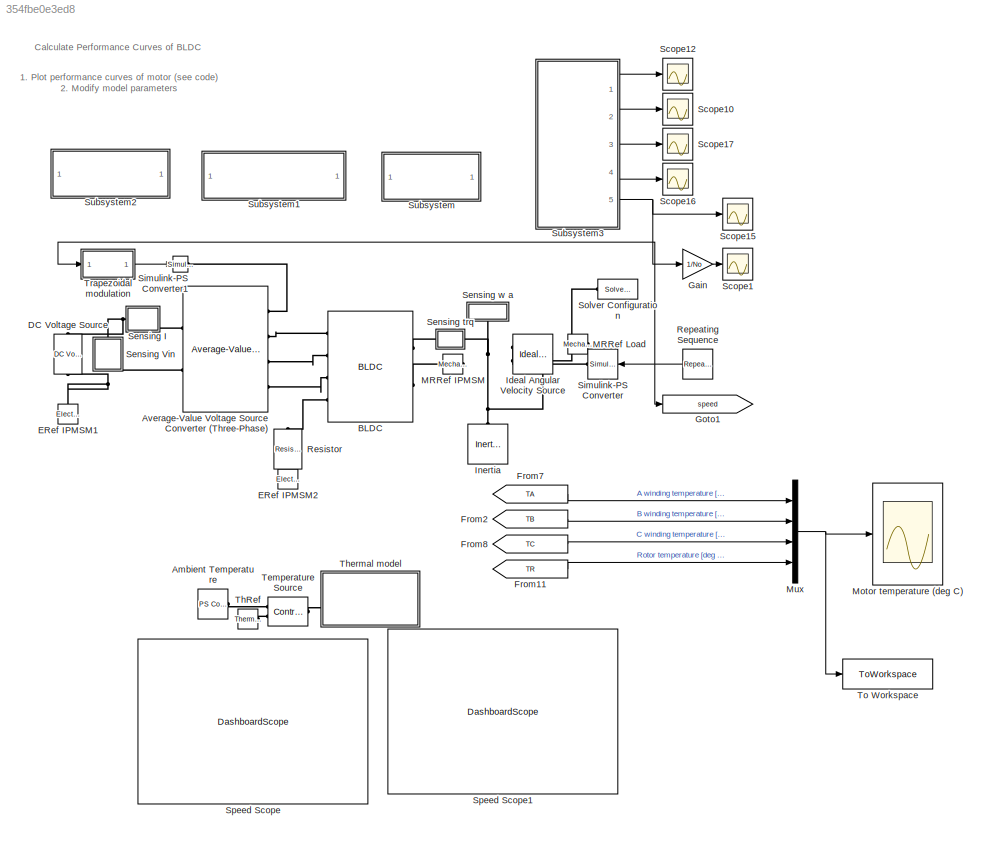
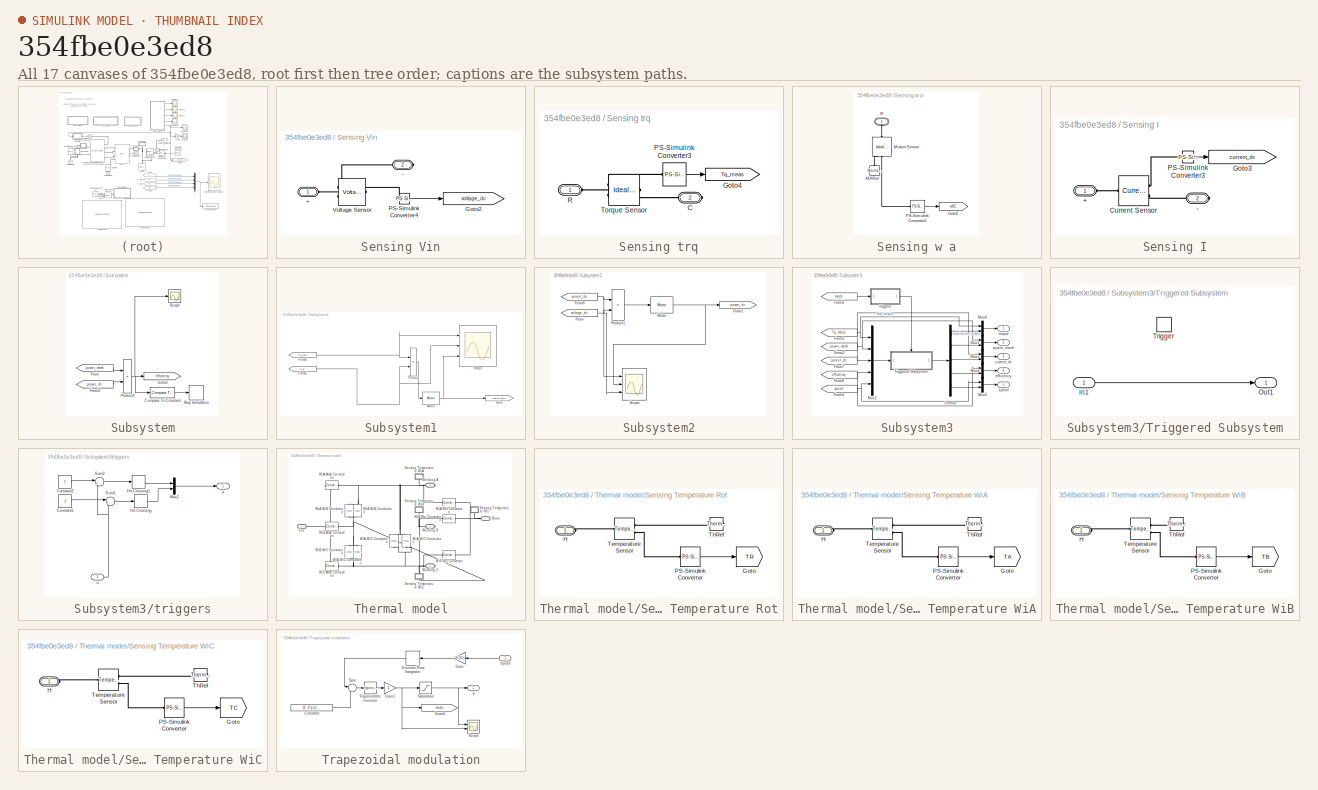
[diagram: thumbnail index - all 17 canvases of the model, root first then tree order]
MODEL slx_354fbe0e3ed8
KIND model
CONFIG AbsTol = auto
CONFIG EnableMultiTasking = off
CONFIG FixedStep = Ts
CONFIG MaxStep = auto
CONFIG MinStep = auto
CONFIG PreLoadFcn = ee_bldc_ideal_input_performance_curves_data;
CONFIG RelTol = 1e-3
CONFIG SampleTimeConstraint = Unconstrained
CONFIG SolverName = ode14x
CONFIG StartTime = 0.0
CONFIG StopFcn = ee_addSimlogTimeStamp(bdroot)
CONFIG StopTime = 20
WORKSPACE source: mxarray member
WORKSPACE Ts = 5e-06
BLOCK [Reference] Ambient Temperature  REF=fl_lib/Physical Signals/Sources/PS Constant
  Commented = on
  Ports = [0, 0, 0, 0, 0, 0, 1]
  SourceBlock = fl_lib/Physical Signals/Sources/PS Constant
  SourceProductBaseCode = SS
  SourceType = PS Constant
BLOCK [Reference] Average-Value Voltage Source Converter (Three-Phase)  REF=ee_lib/Semiconductors &
Converters/Converters/Average-Value
Voltage Source
Converter
(Three-Phase)
  Ports = [0, 0, 0, 0, 0, 4, 2]
  SourceBlock = ee_lib/Semiconductors &\nConverters/Converters/Average-Value\nVoltage Source\nConverter\n(Three-Phase)
  SourceProductBaseCode = PS
  SourceType = Average-Value\nVoltage Source\nConverter\n(Three-Phase)
BLOCK [Reference] BLDC  REF=ee_lib/Electromechanical/Permanent Magnet/BLDC
  Ports = [0, 0, 0, 0, 0, 4, 2]
  SourceBlock = ee_lib/Electromechanical/Permanent Magnet/BLDC
  SourceProductBaseCode = PS
  SourceType = BLDC
BLOCK [Reference] DC Voltage Source  REF=ee_lib/Additional
Components/SPICE Sources/DC Voltage Source
  NameLocation = left
  Ports = [0, 0, 0, 0, 0, 1, 1]
  SourceBlock = ee_lib/Additional\nComponents/SPICE Sources/DC Voltage Source
  SourceProductBaseCode = PS
  SourceType = DC Voltage Source
BLOCK [Reference] ERef IPMSM1  REF=fl_lib/Electrical/Electrical Elements/Electrical Reference
  NameLocation = right
  Ports = [0, 0, 0, 0, 0, 1]
  SourceBlock = fl_lib/Electrical/Electrical Elements/Electrical Reference
  SourceProductBaseCode = SS
  SourceType = Electrical Reference
BLOCK [Reference] ERef IPMSM2  REF=fl_lib/Electrical/Electrical Elements/Electrical Reference
  NameLocation = right
  Ports = [0, 0, 0, 0, 0, 1]
  SourceBlock = fl_lib/Electrical/Electrical Elements/Electrical Reference
  SourceProductBaseCode = SS
  SourceType = Electrical Reference
BLOCK [From] From11
  Commented = on
  GotoTag = TR
  TagVisibility = global
BLOCK [From] From2
  Commented = on
  GotoTag = TB
  TagVisibility = global
BLOCK [From] From7
  Commented = on
  GotoTag = TA
  TagVisibility = global
BLOCK [From] From8
  Commented = on
  GotoTag = TC
  TagVisibility = global
BLOCK [Gain] Gain
  Gain = 1/No
BLOCK [Goto] Goto1
  GotoTag = speed
  TagVisibility = global
BLOCK [Reference] Ideal Angular Velocity Source  REF=fl_lib/Mechanical/Mechanical Sources/Ideal Angular
Velocity Source
  NameLocation = top
  Ports = [0, 0, 0, 0, 0, 1, 2]
  SourceBlock = fl_lib/Mechanical/Mechanical Sources/Ideal Angular\nVelocity Source
  SourceProductBaseCode = SS
  SourceType = Ideal Angular\nVelocity Source
BLOCK [Reference] Inertia  REF=fl_lib/Mechanical/Rotational Elements/Inertia
  NameLocation = left
  Ports = [0, 0, 0, 0, 0, 1]
  SourceBlock = fl_lib/Mechanical/Rotational Elements/Inertia
  SourceProductBaseCode = SS
  SourceType = Inertia
BLOCK [Reference] MRRef IPMSM  REF=fl_lib/Mechanical/Rotational Elements/Mechanical
Rotational Reference
  NameLocation = top
  Ports = [0, 0, 0, 0, 0, 1]
  SourceBlock = fl_lib/Mechanical/Rotational Elements/Mechanical\nRotational Reference
  SourceProductBaseCode = SS
  SourceType = Mechanical\nRotational Reference
BLOCK [Reference] MRRef Load  REF=fl_lib/Mechanical/Rotational Elements/Mechanical
Rotational Reference
  NameLocation = top
  Ports = [0, 0, 0, 0, 0, 1]
  SourceBlock = fl_lib/Mechanical/Rotational Elements/Mechanical\nRotational Reference
  SourceProductBaseCode = SS
  SourceType = Mechanical\nRotational Reference
BLOCK [Scope] Motor temperature (deg C)
  Commented = on
  Floating = off
  NumInputPorts = 1
  Ports = [1]
  ScopeSpecificationString = Simulink.scopes.TimeScopeBlockCfg('CurrentConfiguration', extmgr.ConfigurationSet(extmgr.Configuration('Core','General UI',true),extmgr.Configuration('Core','Source UI',true),extmgr.Configuration('Sources','WiredSimulink',true,'DataLoggingVariableName','ScopeData1','DataLoggingSaveFormat','StructureWithTime','DataLoggingMaxPoints','500000','DataLoggingDecimation','1','DataLoggingDecimateData',true...<+1862ch>
BLOCK [Mux] Mux
  Commented = on
  DisplayOption = bar
  Ports = [4, 1]
BLOCK [Reference] Repeating Sequence  REF=simulink/Sources/Repeating
Sequence
  Ports = [0, 1]
  SourceBlock = simulink/Sources/Repeating\nSequence
  SourceProductBaseCode = SL
  SourceType = Repeating table
BLOCK [Reference] Resistor  REF=fl_lib/Electrical/Electrical Elements/Resistor
  NameLocation = left
  Ports = [0, 0, 0, 0, 0, 1, 1]
  SourceBlock = fl_lib/Electrical/Electrical Elements/Resistor
  SourceProductBaseCode = SS
  SourceType = Resistor
BLOCK [Scope] Scope1
  Floating = off
  NumInputPorts = 1
  Ports = [1]
  ScopeSpecificationString = Simulink.scopes.TimeScopeBlockCfg('CurrentConfiguration', extmgr.ConfigurationSet(extmgr.Configuration('Core','General UI',true),extmgr.Configuration('Core','Source UI',true),extmgr.Configuration('Sources','WiredSimulink',true,'DataLoggingVariableName','ScopeData1','DataLogging',true,'DataLoggingSaveFormat','StructureWithTime'),extmgr.Configuration('Visuals','Time Domain',true,'SerializedDisplays'...<+1498ch>
BLOCK [Scope] Scope10
  Floating = off
  NumInputPorts = 1
  Ports = [1]
  ScopeSpecificationString = Simulink.scopes.TimeScopeBlockCfg('CurrentConfiguration', extmgr.ConfigurationSet(extmgr.Configuration('Core','General UI',true),extmgr.Configuration('Core','Source UI',true),extmgr.Configuration('Sources','WiredSimulink',true,'DataLoggingVariableName','powers','DataLogging',true,'DataLoggingSaveFormat','StructureWithTime'),extmgr.Configuration('Visuals','Time Domain',true,'SerializedDisplays',{st...<+1580ch>
BLOCK [Scope] Scope12
  Floating = off
  NumInputPorts = 1
  Ports = [1]
  ScopeSpecificationString = Simulink.scopes.TimeScopeBlockCfg('CurrentConfiguration', extmgr.ConfigurationSet(extmgr.Configuration('Core','General UI',true),extmgr.Configuration('Core','Source UI',true),extmgr.Configuration('Sources','WiredSimulink',true,'DataLoggingVariableName','torques','DataLogging',true,'DataLoggingSaveFormat','StructureWithTime'),extmgr.Configuration('Visuals','Time Domain',true,'SerializedDisplays',{s...<+1523ch>
BLOCK [Scope] Scope15
  Floating = off
  NumInputPorts = 1
  Ports = [1]
  ScopeSpecificationString = Simulink.scopes.TimeScopeBlockCfg('CurrentConfiguration', extmgr.ConfigurationSet(extmgr.Configuration('Core','General UI',true),extmgr.Configuration('Core','Source UI',true),extmgr.Configuration('Sources','WiredSimulink',true,'DataLoggingVariableName','speeds','DataLogging',true,'DataLoggingSaveFormat','StructureWithTime'),extmgr.Configuration('Visuals','Time Domain',true,'SerializedDisplays',{st...<+1541ch>
BLOCK [Scope] Scope16
  Floating = off
  NumInputPorts = 1
  Ports = [1]
  ScopeSpecificationString = Simulink.scopes.TimeScopeBlockCfg('CurrentConfiguration', extmgr.ConfigurationSet(extmgr.Configuration('Core','General UI',true),extmgr.Configuration('Core','Source UI',true),extmgr.Configuration('Sources','WiredSimulink',true,'DataLoggingVariableName','efficiencys','DataLogging',true,'DataLoggingSaveFormat','StructureWithTime'),extmgr.Configuration('Visuals','Time Domain',true,'SerializedDisplays...<+1571ch>
BLOCK [Scope] Scope17
  Floating = off
  NumInputPorts = 1
  Ports = [1]
  ScopeSpecificationString = Simulink.scopes.TimeScopeBlockCfg('CurrentConfiguration', extmgr.ConfigurationSet(extmgr.Configuration('Core','General UI',true),extmgr.Configuration('Core','Source UI',true),extmgr.Configuration('Sources','WiredSimulink',true,'DataLoggingVariableName','currents','DataLogging',true,'DataLoggingSaveFormat','StructureWithTime'),extmgr.Configuration('Visuals','Time Domain',true,'SerializedDisplays',{...<+1573ch>
BLOCK [SubSystem] Sensing I
  Ports = [0, 0, 0, 0, 0, 1, 1]
  RequestExecContextInheritance = off
BLOCK [PMIOPort] Sensing I/+
  Side = Left
BLOCK [PMIOPort] Sensing I/-
  Port = 2
  Side = Right
BLOCK [Reference] Sensing I/Current Sensor  REF=fl_lib/Electrical/Electrical Sensors/Current Sensor
  Ports = [0, 0, 0, 0, 0, 1, 2]
  SourceBlock = fl_lib/Electrical/Electrical Sensors/Current Sensor
  SourceProductBaseCode = SS
  SourceType = Current Sensor
BLOCK [Goto] Sensing I/Goto3
  GotoTag = current_dc
  TagVisibility = global
BLOCK [Reference] Sensing I/PS-Simulink Converter3  REF=nesl_utility/PS-Simulink
Converter
  Ports = [0, 1, 0, 0, 0, 1]
  SourceBlock = nesl_utility/PS-Simulink\nConverter
  SourceProductBaseCode = PW,SS
  SourceType = PS-Simulink\nConverter
BLOCK [SubSystem] Sensing Vin
  NameLocation = right
  Ports = [0, 0, 0, 0, 0, 1, 1]
  RequestExecContextInheritance = off
BLOCK [PMIOPort] Sensing Vin/+
  Side = Left
BLOCK [PMIOPort] Sensing Vin/-
  Port = 2
  Side = Right
BLOCK [Goto] Sensing Vin/Goto2
  GotoTag = voltage_dc
  TagVisibility = global
BLOCK [Reference] Sensing Vin/PS-Simulink Converter4  REF=nesl_utility/PS-Simulink
Converter
  Ports = [0, 1, 0, 0, 0, 1]
  SourceBlock = nesl_utility/PS-Simulink\nConverter
  SourceProductBaseCode = PW,SS
  SourceType = PS-Simulink\nConverter
BLOCK [Reference] Sensing Vin/Voltage Sensor  REF=fl_lib/Electrical/Electrical Sensors/Voltage Sensor
  Ports = [0, 0, 0, 0, 0, 1, 2]
  SourceBlock = fl_lib/Electrical/Electrical Sensors/Voltage Sensor
  SourceProductBaseCode = SS
  SourceType = Voltage Sensor
BLOCK [SubSystem] Sensing trq
  Ports = [0, 0, 0, 0, 0, 1, 1]
  RequestExecContextInheritance = off
BLOCK [PMIOPort] Sensing trq/C
  Port = 2
  Side = Right
BLOCK [Goto] Sensing trq/Goto4
  GotoTag = Tq_meas
  TagVisibility = global
BLOCK [Reference] Sensing trq/PS-Simulink Converter3  REF=nesl_utility/PS-Simulink
Converter
  Ports = [0, 1, 0, 0, 0, 1]
  SourceBlock = nesl_utility/PS-Simulink\nConverter
  SourceProductBaseCode = PW,SS
  SourceType = PS-Simulink\nConverter
BLOCK [PMIOPort] Sensing trq/R
  Side = Left
BLOCK [Reference] Sensing trq/Torque Sensor  REF=fl_lib/Mechanical/Mechanical Sensors/Ideal Torque Sensor
  Ports = [0, 0, 0, 0, 0, 1, 2]
  SourceBlock = fl_lib/Mechanical/Mechanical Sensors/Ideal Torque Sensor
  SourceProductBaseCode = SS
  SourceType = Ideal Torque Sensor
BLOCK [SubSystem] Sensing w a
  NameLocation = right
  Ports = [0, 0, 0, 0, 0, 1]
  RequestExecContextInheritance = off
BLOCK [Goto] Sensing w a/Goto2
  GotoTag = wSC
  TagVisibility = global
BLOCK [Reference] Sensing w a/MRRef  REF=fl_lib/Mechanical/Rotational Elements/Mechanical
Rotational Reference
  NameLocation = left
  Ports = [0, 0, 0, 0, 0, 1]
  SourceBlock = fl_lib/Mechanical/Rotational Elements/Mechanical\nRotational Reference
  SourceProductBaseCode = SS
  SourceType = Mechanical\nRotational Reference
BLOCK [Reference] Sensing w a/Motion Sensor  REF=fl_lib/Mechanical/Mechanical Sensors/Ideal Rotational
Motion Sensor
  NameLocation = right
  Ports = [0, 0, 0, 0, 0, 1, 3]
  SourceBlock = fl_lib/Mechanical/Mechanical Sensors/Ideal Rotational\nMotion Sensor
  SourceProductBaseCode = SS
  SourceType = Ideal Rotational\nMotion Sensor
BLOCK [Reference] Sensing w a/PS-Simulink Converter1  REF=nesl_utility/PS-Simulink
Converter
  Ports = [0, 1, 0, 0, 0, 1]
  SourceBlock = nesl_utility/PS-Simulink\nConverter
  SourceProductBaseCode = PW,SS
  SourceType = PS-Simulink\nConverter
BLOCK [PMIOPort] Sensing w a/R
  NameLocation = right
  Side = Left
BLOCK [Reference] Simulink-PS Converter  REF=nesl_utility/Simulink-PS
Converter
  Ports = [1, 0, 0, 0, 0, 0, 1]
  SourceBlock = nesl_utility/Simulink-PS\nConverter
  SourceProductBaseCode = PW,SS
  SourceType = Simulink-PS\nConverter
BLOCK [Reference] Simulink-PS Converter1  REF=nesl_utility/Simulink-PS
Converter
  Ports = [1, 0, 0, 0, 0, 0, 1]
  SourceBlock = nesl_utility/Simulink-PS\nConverter
  SourceProductBaseCode = PW,SS
  SourceType = Simulink-PS\nConverter
BLOCK [Reference] Solver Configuration  REF=nesl_utility/Solver
Configuration
  Ports = [0, 0, 0, 0, 0, 0, 1]
  SourceBlock = nesl_utility/Solver\nConfiguration
  SourceProductBaseCode = PW,SS
  SourceType = Solver\nConfiguration
BLOCK [DashboardScope] Speed Scope
  Commented = on
BLOCK [DashboardScope] Speed Scope1
  Commented = on
BLOCK [SubSystem] Subsystem
  Ports = []
  RequestExecContextInheritance = off
BLOCK [Reference] Subsystem/Compare To Constant  REF=simulink/Logic and Bit
Operations/Compare
To Constant
  Ports = [1, 1]
  SourceBlock = simulink/Logic and Bit\nOperations/Compare\nTo Constant
  SourceProductBaseCode = SL
  SourceType = Compare To Constant
BLOCK [From] Subsystem/From
  GotoTag = power_mech
  TagVisibility = global
BLOCK [From] Subsystem/From3
  GotoTag = power_dc
  TagVisibility = global
BLOCK [Goto] Subsystem/Goto2
  GotoTag = efficiency
  TagVisibility = global
BLOCK [Product] Subsystem/Product2
  Inputs = */
  Ports = [2, 1]
BLOCK [Scope] Subsystem/Scope
  Floating = off
  NumInputPorts = 1
  Ports = [1]
  ScopeSpecificationString = Simulink.scopes.TimeScopeBlockCfg('CurrentConfiguration', extmgr.ConfigurationSet(extmgr.Configuration('Core','General UI',true),extmgr.Configuration('Core','Source UI',true),extmgr.Configuration('Sources','WiredSimulink',true,'DataLoggingVariableName','ScopeData3'),extmgr.Configuration('Visuals','Time Domain',true,'SerializedDisplays',{struct('MinYLimReal','-1.00000','MaxYLimReal','1.00000','YLab...<+1390ch>
BLOCK [Stop] Subsystem/Stop Simulation
BLOCK [SubSystem] Subsystem1
  Ports = []
  RequestExecContextInheritance = off
BLOCK [From] Subsystem1/From4
  GotoTag = Tq_meas
  TagVisibility = global
BLOCK [From] Subsystem1/From5
  GotoTag = wSC
  TagVisibility = global
BLOCK [Goto] Subsystem1/Goto
  GotoTag = power_mech
  TagVisibility = global
BLOCK [Reference] Subsystem1/Mean  REF=dspstat3/Mean
  Ports = [1, 1]
  SourceBlock = dspstat3/Mean
  SourceProductBaseCode = DS
  SourceType = Mean
  UserDataPersistent = on
BLOCK [Product] Subsystem1/Product
  Ports = [2, 1]
BLOCK [Scope] Subsystem1/Scope
  Floating = off
  NumInputPorts = 3
  Ports = [3]
  ScopeSpecificationString = Simulink.scopes.TimeScopeBlockCfg('CurrentConfiguration', extmgr.ConfigurationSet(extmgr.Configuration('Core','General UI',true),extmgr.Configuration('Core','Source UI',true),extmgr.Configuration('Sources','WiredSimulink',true,'DataLoggingVariableName','ScopeData2'),extmgr.Configuration('Visuals','Time Domain',true,'SerializedDisplays',{struct('MinYLimReal','-270.07588','MaxYLimReal','2334.09633',...<+1503ch>
BLOCK [SubSystem] Subsystem2
  Ports = []
  RequestExecContextInheritance = off
BLOCK [From] Subsystem2/From
  GotoTag = voltage_dc
  TagVisibility = global
BLOCK [From] Subsystem2/From8
  GotoTag = current_dc
  TagVisibility = global
BLOCK [Goto] Subsystem2/Goto1
  GotoTag = power_dc
  TagVisibility = global
BLOCK [Reference] Subsystem2/Mean  REF=dspstat3/Mean
  Ports = [1, 1]
  SourceBlock = dspstat3/Mean
  SourceProductBaseCode = DS
  SourceType = Mean
  UserDataPersistent = on
BLOCK [Product] Subsystem2/Product1
  Ports = [2, 1]
BLOCK [Scope] Subsystem2/Scope
  Commented = on
  Floating = off
  NumInputPorts = 3
  Ports = [3]
  ScopeSpecificationString = Simulink.scopes.TimeScopeBlockCfg('CurrentConfiguration', extmgr.ConfigurationSet(extmgr.Configuration('Core','General UI',true),extmgr.Configuration('Core','Source UI',true),extmgr.Configuration('Sources','WiredSimulink',true,'DataLoggingVariableName','ScopeData1'),extmgr.Configuration('Visuals','Time Domain',true,'SerializedDisplays',{struct('MinYLimReal','-1046530.07639','MaxYLimReal','118303.7...<+1596ch>
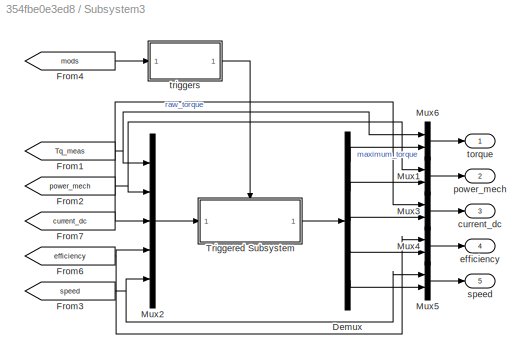
BLOCK [SubSystem] Subsystem3
  Ports = [0, 5]
  RequestExecContextInheritance = off
BLOCK [Demux] Subsystem3/Demux
  Outputs = 5
  Ports = [1, 5]
BLOCK [From] Subsystem3/From1
  GotoTag = Tq_meas
  TagVisibility = global
BLOCK [From] Subsystem3/From2
  GotoTag = power_mech
  TagVisibility = global
BLOCK [From] Subsystem3/From3
  GotoTag = speed
  TagVisibility = global
BLOCK [From] Subsystem3/From4
  GotoTag = mods
  TagVisibility = global
BLOCK [From] Subsystem3/From6
  GotoTag = efficiency
  TagVisibility = global
BLOCK [From] Subsystem3/From7
  GotoTag = current_dc
  TagVisibility = global
BLOCK [Mux] Subsystem3/Mux1
  DisplayOption = bar
  Inputs = 2
  Ports = [2, 1]
BLOCK [Mux] Subsystem3/Mux2
  DisplayOption = bar
  Inputs = 5
  Ports = [5, 1]
BLOCK [Mux] Subsystem3/Mux3
  DisplayOption = bar
  Inputs = 2
  Ports = [2, 1]
BLOCK [Mux] Subsystem3/Mux4
  DisplayOption = bar
  Inputs = 2
  Ports = [2, 1]
BLOCK [Mux] Subsystem3/Mux5
  DisplayOption = bar
  Inputs = 2
  Ports = [2, 1]
BLOCK [Mux] Subsystem3/Mux6
  DisplayOption = bar
  Inputs = 2
  Ports = [2, 1]
BLOCK [SubSystem] Subsystem3/Triggered Subsystem
  Ports = [1, 1, 0, 1]
  RequestExecContextInheritance = off
  TreatAsAtomicUnit = on
BLOCK [Inport] Subsystem3/Triggered Subsystem/In1
BLOCK [Outport] Subsystem3/Triggered Subsystem/Out1
  VectorParamsAs1DForOutWhenUnconnected = off
BLOCK [TriggerPort] Subsystem3/Triggered Subsystem/Trigger
  Ports = []
  StatesWhenEnabling = held
  TriggerType = either
  VariantControl = Variant
BLOCK [Outport] Subsystem3/current_dc
  Port = 3
  VectorParamsAs1DForOutWhenUnconnected = off
BLOCK [Outport] Subsystem3/efficiency
  Port = 4
  VectorParamsAs1DForOutWhenUnconnected = off
BLOCK [Outport] Subsystem3/power_mech
  Port = 2
  VectorParamsAs1DForOutWhenUnconnected = off
BLOCK [Outport] Subsystem3/speed
  Port = 5
  VectorParamsAs1DForOutWhenUnconnected = off
BLOCK [Outport] Subsystem3/torque
  VectorParamsAs1DForOutWhenUnconnected = off
BLOCK [SubSystem] Subsystem3/triggers
  Ports = [1, 1]
  RequestExecContextInheritance = off
BLOCK [Constant] Subsystem3/triggers/Constant1
  Value = -1
BLOCK [Constant] Subsystem3/triggers/Constant2
BLOCK [HitCross] Subsystem3/triggers/Hit Crossing
  Ports = [1, 1]
BLOCK [HitCross] Subsystem3/triggers/Hit Crossing1
  Ports = [1, 1]
BLOCK [Mux] Subsystem3/triggers/Mux2
  DisplayOption = bar
  Inputs = 2
  Ports = [2, 1]
BLOCK [Sum] Subsystem3/triggers/Sum1
  Inputs = |+-
  Ports = [2, 1]
BLOCK [Sum] Subsystem3/triggers/Sum2
  Inputs = |+-
  Ports = [2, 1]
BLOCK [Inport] Subsystem3/triggers/u
BLOCK [Outport] Subsystem3/triggers/y
  VectorParamsAs1DForOutWhenUnconnected = off
BLOCK [Reference] Temperature Source  REF=fl_lib/Thermal/Thermal Sources/Controlled
Temperature Source
  Commented = on
  Ports = [0, 0, 0, 0, 0, 1, 2]
  SourceBlock = fl_lib/Thermal/Thermal Sources/Controlled\nTemperature Source
  SourceProductBaseCode = SS
  SourceType = Controlled\nTemperature Source
BLOCK [Reference] ThRef  REF=fl_lib/Thermal/Thermal Elements/Thermal Reference
  Commented = on
  Ports = [0, 0, 0, 0, 0, 1]
  SourceBlock = fl_lib/Thermal/Thermal Elements/Thermal Reference
  SourceProductBaseCode = SS
  SourceType = Thermal Reference
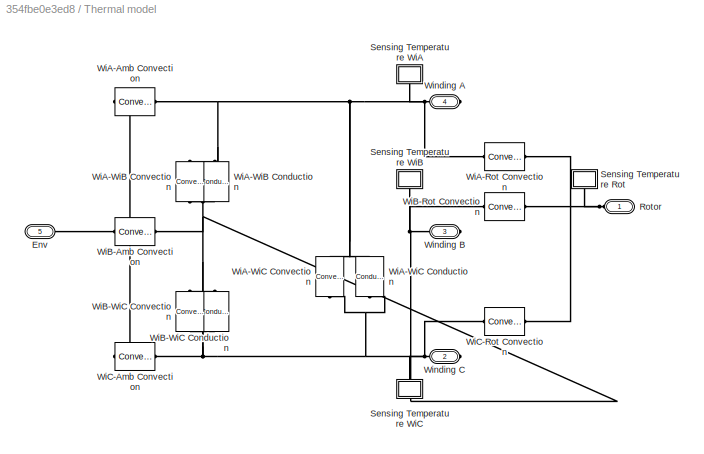
BLOCK [SubSystem] Thermal model
  Commented = on
  Ports = [0, 0, 0, 0, 0, 2, 3]
  RequestExecContextInheritance = off
  Tag = PublishSubsystem
BLOCK [PMIOPort] Thermal model/Env
  Port = 5
  Side = Left
BLOCK [PMIOPort] Thermal model/Rotor
  Side = Left
BLOCK [SubSystem] Thermal model/Sensing Temperature Rot
  NameLocation = right
  Ports = [0, 0, 0, 0, 0, 1]
  RequestExecContextInheritance = off
BLOCK [Goto] Thermal model/Sensing Temperature Rot/Goto
  GotoTag = TR
  TagVisibility = global
BLOCK [PMIOPort] Thermal model/Sensing Temperature Rot/H
  Side = Left
BLOCK [Reference] Thermal model/Sensing Temperature Rot/PS-Simulink Converter  REF=nesl_utility/PS-Simulink
Converter
  Ports = [0, 1, 0, 0, 0, 1]
  SourceBlock = nesl_utility/PS-Simulink\nConverter
  SourceProductBaseCode = PW,SS
  SourceType = PS-Simulink\nConverter
BLOCK [Reference] Thermal model/Sensing Temperature Rot/Temperature Sensor  REF=fl_lib/Thermal/Thermal Sensors/Temperature Sensor
  Ports = [0, 0, 0, 0, 0, 1, 2]
  SourceBlock = fl_lib/Thermal/Thermal Sensors/Temperature Sensor
  SourceProductBaseCode = SS
  SourceType = Temperature Sensor
BLOCK [Reference] Thermal model/Sensing Temperature Rot/ThRef  REF=fl_lib/Thermal/Thermal Elements/Thermal Reference
  NameLocation = top
  Ports = [0, 0, 0, 0, 0, 1]
  SourceBlock = fl_lib/Thermal/Thermal Elements/Thermal Reference
  SourceProductBaseCode = SS
  SourceType = Thermal Reference
BLOCK [SubSystem] Thermal model/Sensing Temperature WiA
  NameLocation = left
  Ports = [0, 0, 0, 0, 0, 1]
  RequestExecContextInheritance = off
BLOCK [Goto] Thermal model/Sensing Temperature WiA/Goto
  GotoTag = TA
  TagVisibility = global
BLOCK [PMIOPort] Thermal model/Sensing Temperature WiA/H
  Side = Left
BLOCK [Reference] Thermal model/Sensing Temperature WiA/PS-Simulink Converter  REF=nesl_utility/PS-Simulink
Converter
  Ports = [0, 1, 0, 0, 0, 1]
  SourceBlock = nesl_utility/PS-Simulink\nConverter
  SourceProductBaseCode = PW,SS
  SourceType = PS-Simulink\nConverter
BLOCK [Reference] Thermal model/Sensing Temperature WiA/Temperature Sensor  REF=fl_lib/Thermal/Thermal Sensors/Temperature Sensor
  Ports = [0, 0, 0, 0, 0, 1, 2]
  SourceBlock = fl_lib/Thermal/Thermal Sensors/Temperature Sensor
  SourceProductBaseCode = SS
  SourceType = Temperature Sensor
BLOCK [Reference] Thermal model/Sensing Temperature WiA/ThRef  REF=fl_lib/Thermal/Thermal Elements/Thermal Reference
  NameLocation = top
  Ports = [0, 0, 0, 0, 0, 1]
  SourceBlock = fl_lib/Thermal/Thermal Elements/Thermal Reference
  SourceProductBaseCode = SS
  SourceType = Thermal Reference
BLOCK [SubSystem] Thermal model/Sensing Temperature WiB
  NameLocation = left
  Ports = [0, 0, 0, 0, 0, 1]
  RequestExecContextInheritance = off
BLOCK [Goto] Thermal model/Sensing Temperature WiB/Goto
  GotoTag = TB
  TagVisibility = global
BLOCK [PMIOPort] Thermal model/Sensing Temperature WiB/H
  Side = Left
BLOCK [Reference] Thermal model/Sensing Temperature WiB/PS-Simulink Converter  REF=nesl_utility/PS-Simulink
Converter
  Ports = [0, 1, 0, 0, 0, 1]
  SourceBlock = nesl_utility/PS-Simulink\nConverter
  SourceProductBaseCode = PW,SS
  SourceType = PS-Simulink\nConverter
BLOCK [Reference] Thermal model/Sensing Temperature WiB/Temperature Sensor  REF=fl_lib/Thermal/Thermal Sensors/Temperature Sensor
  Ports = [0, 0, 0, 0, 0, 1, 2]
  SourceBlock = fl_lib/Thermal/Thermal Sensors/Temperature Sensor
  SourceProductBaseCode = SS
  SourceType = Temperature Sensor
BLOCK [Reference] Thermal model/Sensing Temperature WiB/ThRef  REF=fl_lib/Thermal/Thermal Elements/Thermal Reference
  NameLocation = top
  Ports = [0, 0, 0, 0, 0, 1]
  SourceBlock = fl_lib/Thermal/Thermal Elements/Thermal Reference
  SourceProductBaseCode = SS
  SourceType = Thermal Reference
BLOCK [SubSystem] Thermal model/Sensing Temperature WiC
  NameLocation = left
  Ports = [0, 0, 0, 0, 0, 1]
  RequestExecContextInheritance = off
BLOCK [Goto] Thermal model/Sensing Temperature WiC/Goto
  GotoTag = TC
  TagVisibility = global
BLOCK [PMIOPort] Thermal model/Sensing Temperature WiC/H
  Side = Left
BLOCK [Reference] Thermal model/Sensing Temperature WiC/PS-Simulink Converter  REF=nesl_utility/PS-Simulink
Converter
  Ports = [0, 1, 0, 0, 0, 1]
  SourceBlock = nesl_utility/PS-Simulink\nConverter
  SourceProductBaseCode = PW,SS
  SourceType = PS-Simulink\nConverter
BLOCK [Reference] Thermal model/Sensing Temperature WiC/Temperature Sensor  REF=fl_lib/Thermal/Thermal Sensors/Temperature Sensor
  Ports = [0, 0, 0, 0, 0, 1, 2]
  SourceBlock = fl_lib/Thermal/Thermal Sensors/Temperature Sensor
  SourceProductBaseCode = SS
  SourceType = Temperature Sensor
BLOCK [Reference] Thermal model/Sensing Temperature WiC/ThRef  REF=fl_lib/Thermal/Thermal Elements/Thermal Reference
  NameLocation = top
  Ports = [0, 0, 0, 0, 0, 1]
  SourceBlock = fl_lib/Thermal/Thermal Elements/Thermal Reference
  SourceProductBaseCode = SS
  SourceType = Thermal Reference
BLOCK [Reference] Thermal model/WiA-Amb Convection  REF=fl_lib/Thermal/Thermal Elements/Convective Heat
Transfer
  Ports = [0, 0, 0, 0, 0, 1, 1]
  SourceBlock = fl_lib/Thermal/Thermal Elements/Convective Heat\nTransfer
  SourceProductBaseCode = SS
  SourceType = Convective Heat\nTransfer
BLOCK [Reference] Thermal model/WiA-Rot Convection  REF=fl_lib/Thermal/Thermal Elements/Convective Heat
Transfer
  NameLocation = top
  Ports = [0, 0, 0, 0, 0, 1, 1]
  SourceBlock = fl_lib/Thermal/Thermal Elements/Convective Heat\nTransfer
  SourceProductBaseCode = SS
  SourceType = Convective Heat\nTransfer
BLOCK [Reference] Thermal model/WiA-WiB Conduction  REF=fl_lib/Thermal/Thermal Elements/Conductive Heat
Transfer
  NameLocation = right
  Ports = [0, 0, 0, 0, 0, 1, 1]
  SourceBlock = fl_lib/Thermal/Thermal Elements/Conductive Heat\nTransfer
  SourceProductBaseCode = SS
  SourceType = Conductive Heat\nTransfer
BLOCK [Reference] Thermal model/WiA-WiB Convection  REF=fl_lib/Thermal/Thermal Elements/Convective Heat
Transfer
  NameLocation = left
  Ports = [0, 0, 0, 0, 0, 1, 1]
  SourceBlock = fl_lib/Thermal/Thermal Elements/Convective Heat\nTransfer
  SourceProductBaseCode = SS
  SourceType = Convective Heat\nTransfer
BLOCK [Reference] Thermal model/WiA-WiC Conduction  REF=fl_lib/Thermal/Thermal Elements/Conductive Heat
Transfer
  NameLocation = right
  Ports = [0, 0, 0, 0, 0, 1, 1]
  SourceBlock = fl_lib/Thermal/Thermal Elements/Conductive Heat\nTransfer
  SourceProductBaseCode = SS
  SourceType = Conductive Heat\nTransfer
BLOCK [Reference] Thermal model/WiA-WiC Convection  REF=fl_lib/Thermal/Thermal Elements/Convective Heat
Transfer
  NameLocation = left
  Ports = [0, 0, 0, 0, 0, 1, 1]
  SourceBlock = fl_lib/Thermal/Thermal Elements/Convective Heat\nTransfer
  SourceProductBaseCode = SS
  SourceType = Convective Heat\nTransfer
BLOCK [Reference] Thermal model/WiB-Amb Convection  REF=fl_lib/Thermal/Thermal Elements/Convective Heat
Transfer
  Ports = [0, 0, 0, 0, 0, 1, 1]
  SourceBlock = fl_lib/Thermal/Thermal Elements/Convective Heat\nTransfer
  SourceProductBaseCode = SS
  SourceType = Convective Heat\nTransfer
BLOCK [Reference] Thermal model/WiB-Rot Convection  REF=fl_lib/Thermal/Thermal Elements/Convective Heat
Transfer
  Ports = [0, 0, 0, 0, 0, 1, 1]
  SourceBlock = fl_lib/Thermal/Thermal Elements/Convective Heat\nTransfer
  SourceProductBaseCode = SS
  SourceType = Convective Heat\nTransfer
BLOCK [Reference] Thermal model/WiB-WiC Conduction  REF=fl_lib/Thermal/Thermal Elements/Conductive Heat
Transfer
  NameLocation = right
  Ports = [0, 0, 0, 0, 0, 1, 1]
  SourceBlock = fl_lib/Thermal/Thermal Elements/Conductive Heat\nTransfer
  SourceProductBaseCode = SS
  SourceType = Conductive Heat\nTransfer
BLOCK [Reference] Thermal model/WiB-WiC Convection  REF=fl_lib/Thermal/Thermal Elements/Convective Heat
Transfer
  NameLocation = left
  Ports = [0, 0, 0, 0, 0, 1, 1]
  SourceBlock = fl_lib/Thermal/Thermal Elements/Convective Heat\nTransfer
  SourceProductBaseCode = SS
  SourceType = Convective Heat\nTransfer
BLOCK [Reference] Thermal model/WiC-Amb Convection  REF=fl_lib/Thermal/Thermal Elements/Convective Heat
Transfer
  Ports = [0, 0, 0, 0, 0, 1, 1]
  SourceBlock = fl_lib/Thermal/Thermal Elements/Convective Heat\nTransfer
  SourceProductBaseCode = SS
  SourceType = Convective Heat\nTransfer
BLOCK [Reference] Thermal model/WiC-Rot Convection  REF=fl_lib/Thermal/Thermal Elements/Convective Heat
Transfer
  NameLocation = top
  Ports = [0, 0, 0, 0, 0, 1, 1]
  SourceBlock = fl_lib/Thermal/Thermal Elements/Convective Heat\nTransfer
  SourceProductBaseCode = SS
  SourceType = Convective Heat\nTransfer
BLOCK [PMIOPort] Thermal model/Winding A
  Port = 4
  Side = Right
BLOCK [PMIOPort] Thermal model/Winding B
  Port = 3
  Side = Right
BLOCK [PMIOPort] Thermal model/Winding C
  NameLocation = top
  Port = 2
  Side = Right
BLOCK [ToWorkspace] To Workspace
  FixptAsFi = on
  MaxDataPoints = inf
  Ports = [1]
  SampleTime = -1
  SaveFormat = Timeseries
  VariableName = temperatures
BLOCK [SubSystem] Trapezoidal modulation
  Ports = [1, 1]
  RequestExecContextInheritance = off
BLOCK [Constant] Trapezoidal modulation/Constant
  Value = [0 -2*pi/3 2*pi/3]+pi/2
BLOCK [DiscreteIntegrator] Trapezoidal modulation/Discrete-Time Integrator
  ICPrevOutput = DiscIntNeverNeededParam
  ICPrevScaledInput = DiscIntNeverNeededParam
  InitialConditionSetting = Auto
  Ports = [1, 1]
  SampleTime = -1
  gainval = nPolePairs
BLOCK [Gain] Trapezoidal modulation/Gain
  Gain = (pi/30)
BLOCK [Gain] Trapezoidal modulation/Gain1
  Gain = 2
BLOCK [Goto] Trapezoidal modulation/Goto4
  GotoTag = mods
  TagVisibility = global
BLOCK [Saturate] Trapezoidal modulation/Saturation
  LowerLimit = -1
  UpperLimit = 1
BLOCK [Scope] Trapezoidal modulation/Scope
  Floating = off
  NumInputPorts = 2
  Ports = [2]
  ScopeSpecificationString = Simulink.scopes.TimeScopeBlockCfg('CurrentConfiguration', extmgr.ConfigurationSet(extmgr.Configuration('Core','General UI',true),extmgr.Configuration('Core','Source UI',true),extmgr.Configuration('Sources','WiredSimulink',true,'DataLoggingVariableName','ScopeData1'),extmgr.Configuration('Visuals','Time Domain',true,'SerializedDisplays',{struct('MinYLimReal','-1.27119','MaxYLimReal','0.44361','YLab...<+1643ch>
BLOCK [Sum] Trapezoidal modulation/Sum
  Inputs = |++
  Ports = [2, 1]
BLOCK [Trigonometry] Trapezoidal modulation/Trigonometric Function
  Ports = [1, 1]
BLOCK [Outport] Trapezoidal modulation/g
  VectorParamsAs1DForOutWhenUnconnected = off
BLOCK [Inport] Trapezoidal modulation/speed
ANNOTATION (root): 1. Plot performance curves of motor ( see code ) 2. Modify model parameters
ANNOTATION (root): Calculate Performance Curves of BLDC
LINE From11:1 -> Mux:4
LINE From2:1 -> Mux:2
LINE From7:1 -> Mux:1
LINE From8:1 -> Mux:3
LINE Gain:1 -> Scope1:1
NET Mux:1 -> Motor temperature (deg C):1, To Workspace:1
NET Repeating Sequence:1 -> Goto1:1, Simulink-PS Converter:1, Trapezoidal modulation:1
LINE Sensing I/PS-Simulink Converter3:1 -> Sensing I/Goto3:1
LINE Sensing Vin/PS-Simulink Converter4:1 -> Sensing Vin/Goto2:1
LINE Sensing trq/PS-Simulink Converter3:1 -> Sensing trq/Goto4:1
LINE Sensing w a/PS-Simulink Converter1:1 -> Sensing w a/Goto2:1
LINE Subsystem/Compare To Constant:1 -> Subsystem/Stop Simulation:1
LINE Subsystem/From3:1 -> Subsystem/Product2:2
LINE Subsystem/From:1 -> Subsystem/Product2:1
NET Subsystem/Product2:1 -> Subsystem/Compare To Constant:1, Subsystem/Goto2:1, Subsystem/Scope:1
NET Subsystem1/From4:1 -> Subsystem1/Product:1, Subsystem1/Scope:1
NET Subsystem1/From5:1 -> Subsystem1/Product:2, Subsystem1/Scope:2
NET Subsystem1/Mean:1 -> Subsystem1/Goto:1, Subsystem1/Scope:3
LINE Subsystem1/Product:1 -> Subsystem1/Mean:1
NET Subsystem2/From8:1 -> Subsystem2/Product1:1, Subsystem2/Scope:1
NET Subsystem2/From:1 -> Subsystem2/Product1:2, Subsystem2/Scope:3
NET Subsystem2/Mean:1 -> Subsystem2/Goto1:1, Subsystem2/Scope:2
LINE Subsystem2/Product1:1 -> Subsystem2/Mean:1
LINE Subsystem3/Demux:1 -> Subsystem3/Mux6:2
LINE Subsystem3/Demux:2 -> Subsystem3/Mux1:2
LINE Subsystem3/Demux:3 -> Subsystem3/Mux3:2
LINE Subsystem3/Demux:4 -> Subsystem3/Mux4:2
LINE Subsystem3/Demux:5 -> Subsystem3/Mux5:2
NET Subsystem3/From1:1 -> Subsystem3/Mux2:1, Subsystem3/Mux6:1
NET Subsystem3/From2:1 -> Subsystem3/Mux1:1, Subsystem3/Mux2:2
NET Subsystem3/From3:1 -> Subsystem3/Mux2:5, Subsystem3/Mux5:1
LINE Subsystem3/From4:1 -> Subsystem3/triggers:1
NET Subsystem3/From6:1 -> Subsystem3/Mux2:4, Subsystem3/Mux4:1
NET Subsystem3/From7:1 -> Subsystem3/Mux2:3, Subsystem3/Mux3:1
LINE Subsystem3/Mux1:1 -> Subsystem3/power_mech:1
LINE Subsystem3/Mux2:1 -> Subsystem3/Triggered Subsystem:1
LINE Subsystem3/Mux3:1 -> Subsystem3/current_dc:1
LINE Subsystem3/Mux4:1 -> Subsystem3/efficiency:1
LINE Subsystem3/Mux5:1 -> Subsystem3/speed:1
LINE Subsystem3/Mux6:1 -> Subsystem3/torque:1
LINE Subsystem3/Triggered Subsystem/In1:1 -> Subsystem3/Triggered Subsystem/Out1:1
LINE Subsystem3/Triggered Subsystem:1 -> Subsystem3/Demux:1
LINE Subsystem3/triggers/Constant1:1 -> Subsystem3/triggers/Sum1:1
LINE Subsystem3/triggers/Constant2:1 -> Subsystem3/triggers/Sum2:1
LINE Subsystem3/triggers/Hit Crossing1:1 -> Subsystem3/triggers/Mux2:1
LINE Subsystem3/triggers/Hit Crossing:1 -> Subsystem3/triggers/Mux2:2
LINE Subsystem3/triggers/Mux2:1 -> Subsystem3/triggers/y:1
LINE Subsystem3/triggers/Sum1:1 -> Subsystem3/triggers/Hit Crossing:1
LINE Subsystem3/triggers/Sum2:1 -> Subsystem3/triggers/Hit Crossing1:1
NET Subsystem3/triggers/u:1 -> Subsystem3/triggers/Sum1:2, Subsystem3/triggers/Sum2:2
LINE Subsystem3/triggers:1 -> Subsystem3/Triggered Subsystem:trigger
LINE Subsystem3:1 -> Scope12:1
LINE Subsystem3:2 -> Scope10:1
LINE Subsystem3:3 -> Scope17:1
LINE Subsystem3:4 -> Scope16:1
NET Subsystem3:5 -> Gain:1, Scope15:1
LINE Thermal model/Sensing Temperature Rot/PS-Simulink Converter:1 -> Thermal model/Sensing Temperature Rot/Goto:1
LINE Thermal model/Sensing Temperature WiA/PS-Simulink Converter:1 -> Thermal model/Sensing Temperature WiA/Goto:1
LINE Thermal model/Sensing Temperature WiB/PS-Simulink Converter:1 -> Thermal model/Sensing Temperature WiB/Goto:1
LINE Thermal model/Sensing Temperature WiC/PS-Simulink Converter:1 -> Thermal model/Sensing Temperature WiC/Goto:1
LINE Trapezoidal modulation/Constant:1 -> Trapezoidal modulation/Sum:2
LINE Trapezoidal modulation/Discrete-Time Integrator:1 -> Trapezoidal modulation/Sum:1
NET Trapezoidal modulation/Gain1:1 -> Trapezoidal modulation/Goto4:1, Trapezoidal modulation/Saturation:1, Trapezoidal modulation/Scope:2
LINE Trapezoidal modulation/Gain:1 -> Trapezoidal modulation/Discrete-Time Integrator:1
NET Trapezoidal modulation/Saturation:1 -> Trapezoidal modulation/Scope:1, Trapezoidal modulation/g:1
LINE Trapezoidal modulation/Sum:1 -> Trapezoidal modulation/Trigonometric Function:1
LINE Trapezoidal modulation/Trigonometric Function:1 -> Trapezoidal modulation/Gain1:1
LINE Trapezoidal modulation/speed:1 -> Trapezoidal modulation/Gain:1
LINE Trapezoidal modulation:1 -> Simulink-PS Converter1:1
PLINE Ambient Temperature:RConn1 -- Temperature Source:RConn1
PLINE Average-Value Voltage Source Converter (Three-Phase):LConn1 -- Simulink-PS Converter1:RConn1
PLINE Average-Value Voltage Source Converter (Three-Phase):LConn2 -- BLDC:LConn1
PLINE Average-Value Voltage Source Converter (Three-Phase):LConn3 -- BLDC:LConn2
PLINE Average-Value Voltage Source Converter (Three-Phase):LConn4 -- BLDC:LConn3
PLINE Average-Value Voltage Source Converter (Three-Phase):RConn1 -- Sensing I:RConn1
PNET net1: Average-Value Voltage Source Converter (Three-Phase):RConn2 -- DC Voltage Source:RConn1 -- ERef IPMSM1:LConn1 -- Sensing Vin:RConn1
PLINE BLDC:LConn4 -- Resistor:LConn1
PLINE BLDC:RConn1 -- Sensing trq:LConn1
PLINE BLDC:RConn2 -- MRRef IPMSM:LConn1
PNET net2: DC Voltage Source:LConn1 -- Sensing I:LConn1 -- Sensing Vin:LConn1
PLINE ERef IPMSM2:LConn1 -- Resistor:RConn1
PNET net3: Ideal Angular Velocity Source:LConn1 -- Inertia:LConn1 -- Sensing trq:RConn1 -- Sensing w a:LConn1
PLINE Ideal Angular Velocity Source:RConn1 -- Simulink-PS Converter:RConn1
PNET net4: Ideal Angular Velocity Source:RConn2 -- MRRef Load:LConn1 -- Solver Configuration:RConn1
PLINE Sensing I/+:RConn1 -- Sensing I/Current Sensor:LConn1
PLINE Sensing I/-:RConn1 -- Sensing I/Current Sensor:RConn2
PLINE Sensing I/Current Sensor:RConn1 -- Sensing I/PS-Simulink Converter3:LConn1
PLINE Sensing Vin/+:RConn1 -- Sensing Vin/Voltage Sensor:LConn1
PLINE Sensing Vin/-:RConn1 -- Sensing Vin/Voltage Sensor:RConn2
PLINE Sensing Vin/PS-Simulink Converter4:LConn1 -- Sensing Vin/Voltage Sensor:RConn1
PLINE Sensing trq/C:RConn1 -- Sensing trq/Torque Sensor:RConn1
PLINE Sensing trq/PS-Simulink Converter3:LConn1 -- Sensing trq/Torque Sensor:RConn2
PLINE Sensing trq/R:RConn1 -- Sensing trq/Torque Sensor:LConn1
PLINE Sensing w a/MRRef:LConn1 -- Sensing w a/Motion Sensor:RConn1
PLINE Sensing w a/Motion Sensor:LConn1 -- Sensing w a/R:RConn1
PLINE Sensing w a/Motion Sensor:RConn2 -- Sensing w a/PS-Simulink Converter1:LConn1
PLINE Temperature Source:LConn1 -- Thermal model:LConn2
PLINE Temperature Source:RConn2 -- ThRef:LConn1
PNET net5: Thermal model/Env:RConn1 -- Thermal model/WiA-Amb Convection:RConn1 -- Thermal model/WiB-Amb Convection:RConn1 -- Thermal model/WiC-Amb Convection:RConn1
PNET net6: Thermal model/Rotor:RConn1 -- Thermal model/Sensing Temperature Rot:LConn1 -- Thermal model/WiA-Rot Convection:LConn1 -- Thermal model/WiB-Rot Convection:LConn1 -- Thermal model/WiC-Rot Convection:LConn1
PLINE Thermal model/Sensing Temperature Rot/H:RConn1 -- Thermal model/Sensing Temperature Rot/Temperature Sensor:LConn1
PLINE Thermal model/Sensing Temperature Rot/PS-Simulink Converter:LConn1 -- Thermal model/Sensing Temperature Rot/Temperature Sensor:RConn2
PLINE Thermal model/Sensing Temperature Rot/Temperature Sensor:RConn1 -- Thermal model/Sensing Temperature Rot/ThRef:LConn1
PLINE Thermal model/Sensing Temperature WiA/H:RConn1 -- Thermal model/Sensing Temperature WiA/Temperature Sensor:LConn1
PLINE Thermal model/Sensing Temperature WiA/PS-Simulink Converter:LConn1 -- Thermal model/Sensing Temperature WiA/Temperature Sensor:RConn2
PLINE Thermal model/Sensing Temperature WiA/Temperature Sensor:RConn1 -- Thermal model/Sensing Temperature WiA/ThRef:LConn1
PNET net7: Thermal model/Sensing Temperature WiA:LConn1 -- Thermal model/WiA-Amb Convection:LConn1 -- Thermal model/WiA-Rot Convection:RConn1 -- Thermal model/WiA-WiB Conduction:LConn1 -- Thermal model/WiA-WiB Convection:LConn1 -- Thermal model/WiA-WiC Conduction:RConn1 -- Thermal model/WiA-WiC Convection:RConn1 -- Thermal model/Winding A:RConn1
PLINE Thermal model/Sensing Temperature WiB/H:RConn1 -- Thermal model/Sensing Temperature WiB/Temperature Sensor:LConn1
PLINE Thermal model/Sensing Temperature WiB/PS-Simulink Converter:LConn1 -- Thermal model/Sensing Temperature WiB/Temperature Sensor:RConn2
PLINE Thermal model/Sensing Temperature WiB/Temperature Sensor:RConn1 -- Thermal model/Sensing Temperature WiB/ThRef:LConn1
PNET net8: Thermal model/Sensing Temperature WiB:LConn1 -- Thermal model/WiA-WiB Conduction:RConn1 -- Thermal model/WiA-WiB Convection:RConn1 -- Thermal model/WiB-Amb Convection:LConn1 -- Thermal model/WiB-Rot Convection:RConn1 -- Thermal model/WiB-WiC Conduction:LConn1 -- Thermal model/WiB-WiC Convection:LConn1 -- Thermal model/Winding B:RConn1
PLINE Thermal model/Sensing Temperature WiC/H:RConn1 -- Thermal model/Sensing Temperature WiC/Temperature Sensor:LConn1
PLINE Thermal model/Sensing Temperature WiC/PS-Simulink Converter:LConn1 -- Thermal model/Sensing Temperature WiC/Temperature Sensor:RConn2
PLINE Thermal model/Sensing Temperature WiC/Temperature Sensor:RConn1 -- Thermal model/Sensing Temperature WiC/ThRef:LConn1
PNET net9: Thermal model/Sensing Temperature WiC:LConn1 -- Thermal model/WiA-WiC Conduction:LConn1 -- Thermal model/WiA-WiC Convection:LConn1 -- Thermal model/WiB-WiC Conduction:RConn1 -- Thermal model/WiB-WiC Convection:RConn1 -- Thermal model/WiC-Amb Convection:LConn1 -- Thermal model/WiC-Rot Convection:RConn1 -- Thermal model/Winding C:RConn1
note: NET lines group one-source signal fan-out (src -> all destinations, sorted); 1:1 wires keep LINE; PNET lines group multi-terminal physical nets as a canonical sorted terminal list (undirected conserving connections); 2-terminal nets keep the pairwise PLINE form
